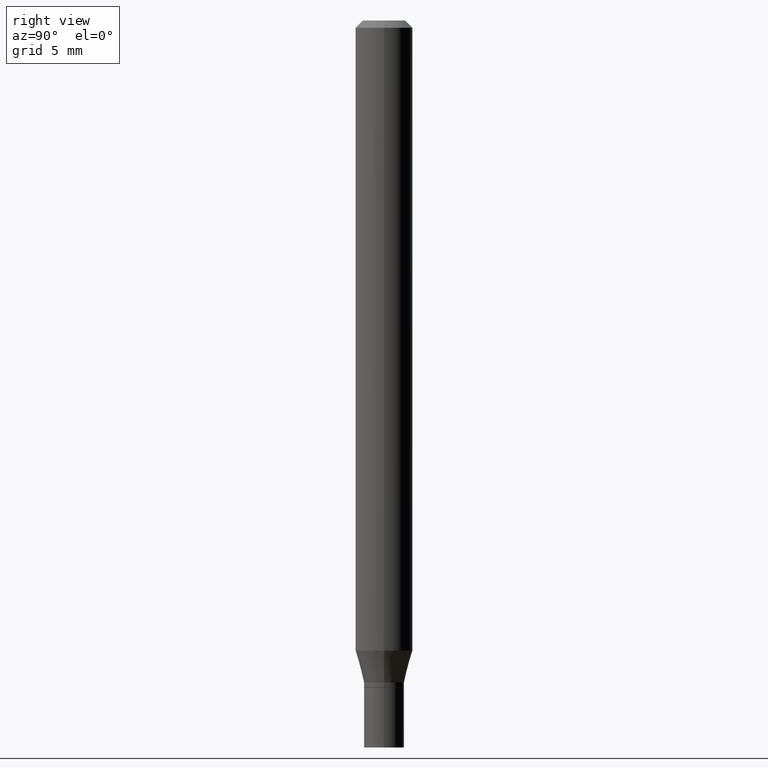
[diagram: clean part render]
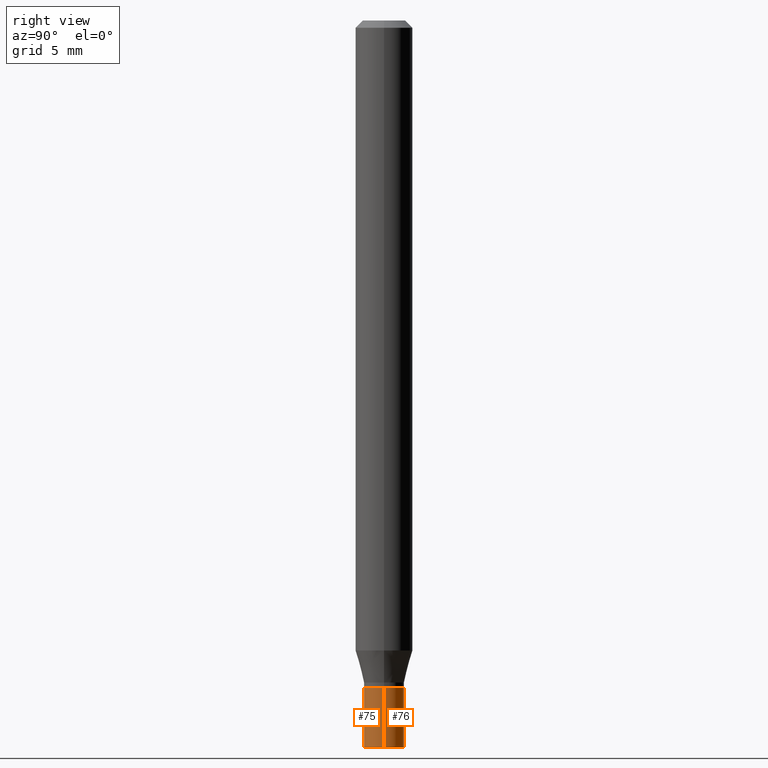
[diagram: same view with one multi-face feature highlighted, each face labeled with its STEP entity id]
A machine part, right view. The highlighted faces form ONE feature: a constant-radius fillet chain: 2 tangent blend faces with common blend radius 1.0503 mm. The faces share edges in the B-rep.
Their STEP definitions:
[1] entity #76 (Cylinder):
#10 = DIRECTION ( 'NONE',  ( -2.445468806185136597E-29, 3.491481338843145583E-15, 1.000000000000000000 ) ) ;
#24 = EDGE_CURVE ( 'NONE', #250, #203, #225, .T. ) ;
#42 = CARTESIAN_POINT ( 'NONE',  ( 3.364720530430130200E-29, -4.803929174114285214E-15, -1.375900000000000123 ) ) ;
#76 = ADVANCED_FACE ( 'NONE', ( #178 ), #435, .T. ) ;
#88 = CARTESIAN_POINT ( 'NONE',  ( -0.04134999999999999787, -4.726766169952701467E-15, -1.375900000000000123 ) ) ;
#91 = DIRECTION ( 'NONE',  ( -2.445468806185136597E-29, 3.491481338843145583E-15, 1.000000000000000000 ) ) ;
#102 = EDGE_LOOP ( 'NONE', ( #256, #272, #177, #450 ) ) ;
#120 = CARTESIAN_POINT ( 'NONE',  ( 0.04134999999999999787, -2.887455067223271427E-16, 2.016299096791619635E-30 ) ) ;
#123 = CARTESIAN_POINT ( 'NONE',  ( 0.04134999999999999787, -5.092674680836612159E-15, -1.375900000000000123 ) ) ;
#134 = CARTESIAN_POINT ( 'NONE',  ( 0.04134999999999999787, -5.525967514987045911E-15, -1.500000000000000222 ) ) ;
#140 = VECTOR ( 'NONE', #386, 39.37007874015748143 ) ;
#151 = CIRCLE ( 'NONE', #455, 0.04134999999999999787 ) ;
#153 = DIRECTION ( 'NONE',  ( -2.445468806185136877E-29, 3.491481338843145188E-15, 1.000000000000000000 ) ) ;
#166 = CARTESIAN_POINT ( 'NONE',  ( -0.04134999999999999787, 2.938094212368014117E-16, -2.033979659820403452E-30 ) ) ;
#177 = ORIENTED_EDGE ( 'NONE', *, *, #24, .F. ) ;
#178 = FACE_OUTER_BOUND ( 'NONE', #102, .T. ) ;
#187 = DIRECTION ( 'NONE',  ( 1.000000000000000000, -6.982962677686273021E-15, 0.000000000000000000 ) ) ;
#203 = VERTEX_POINT ( 'NONE', #88 ) ;
#204 = CARTESIAN_POINT ( 'NONE',  ( 3.668203209277704895E-29, -5.237222008264718177E-15, -1.500000000000000222 ) ) ;
#210 = CARTESIAN_POINT ( 'NONE',  ( -0.04134999999999999787, -4.726766169952701467E-15, -1.500000000000000222 ) ) ;
#225 = CIRCLE ( 'NONE', #402, 0.04134999999999999787 ) ;
#230 = DIRECTION ( 'NONE',  ( 1.000000000000000000, -6.982962677686267499E-15, 4.876176775795936353E-29 ) ) ;
#233 = LINE ( 'NONE', #120, #304 ) ;
#250 = VERTEX_POINT ( 'NONE', #123 ) ;
#256 = ORIENTED_EDGE ( 'NONE', *, *, #323, .T. ) ;
#262 = AXIS2_PLACEMENT_3D ( 'NONE', #445, #332, #230 ) ;
#270 = EDGE_CURVE ( 'NONE', #389, #250, #233, .T. ) ;
#272 = ORIENTED_EDGE ( 'NONE', *, *, #387, .T. ) ;
#304 = VECTOR ( 'NONE', #153, 39.37007874015748143 ) ;
#323 = EDGE_CURVE ( 'NONE', #389, #349, #151, .T. ) ;
#332 = DIRECTION ( 'NONE',  ( -2.445468806185136597E-29, 3.491481338843145583E-15, 1.000000000000000000 ) ) ;
#346 = DIRECTION ( 'NONE',  ( 1.000000000000000000, -6.982962677686273021E-15, 0.000000000000000000 ) ) ;
#349 = VERTEX_POINT ( 'NONE', #210 ) ;
#386 = DIRECTION ( 'NONE',  ( -2.445468806185136877E-29, 3.491481338843145188E-15, 1.000000000000000000 ) ) ;
#387 = EDGE_CURVE ( 'NONE', #349, #203, #463, .T. ) ;
#389 = VERTEX_POINT ( 'NONE', #134 ) ;
#402 = AXIS2_PLACEMENT_3D ( 'NONE', #42, #10, #187 ) ;
#435 = CYLINDRICAL_SURFACE ( 'NONE', #262, 0.04134999999999999787 ) ;
#445 = CARTESIAN_POINT ( 'NONE',  ( 0.000000000000000000, 0.000000000000000000, 0.000000000000000000 ) ) ;
#450 = ORIENTED_EDGE ( 'NONE', *, *, #270, .F. ) ;
#455 = AXIS2_PLACEMENT_3D ( 'NONE', #204, #91, #346 ) ;
#463 = LINE ( 'NONE', #166, #140 ) ;
[2] entity #75 (Cylinder):
#47 = CARTESIAN_POINT ( 'NONE',  ( 0.000000000000000000, 0.000000000000000000, 0.000000000000000000 ) ) ;
#75 = ADVANCED_FACE ( 'NONE', ( #113 ), #185, .T. ) ;
#88 = CARTESIAN_POINT ( 'NONE',  ( -0.04134999999999999787, -4.726766169952701467E-15, -1.375900000000000123 ) ) ;
#112 = DIRECTION ( 'NONE',  ( 1.000000000000000000, -6.982962677686267499E-15, 4.876176775795936353E-29 ) ) ;
#113 = FACE_OUTER_BOUND ( 'NONE', #137, .T. ) ;
#120 = CARTESIAN_POINT ( 'NONE',  ( 0.04134999999999999787, -2.887455067223271427E-16, 2.016299096791619635E-30 ) ) ;
#123 = CARTESIAN_POINT ( 'NONE',  ( 0.04134999999999999787, -5.092674680836612159E-15, -1.375900000000000123 ) ) ;
#134 = CARTESIAN_POINT ( 'NONE',  ( 0.04134999999999999787, -5.525967514987045911E-15, -1.500000000000000222 ) ) ;
#137 = EDGE_LOOP ( 'NONE', ( #252, #345, #385, #303 ) ) ;
#139 = EDGE_CURVE ( 'NONE', #349, #389, #357, .T. ) ;
#140 = VECTOR ( 'NONE', #386, 39.37007874015748143 ) ;
#145 = CARTESIAN_POINT ( 'NONE',  ( 3.668203209277704895E-29, -5.237222008264718177E-15, -1.500000000000000222 ) ) ;
#153 = DIRECTION ( 'NONE',  ( -2.445468806185136877E-29, 3.491481338843145188E-15, 1.000000000000000000 ) ) ;
#166 = CARTESIAN_POINT ( 'NONE',  ( -0.04134999999999999787, 2.938094212368014117E-16, -2.033979659820403452E-30 ) ) ;
#175 = AXIS2_PLACEMENT_3D ( 'NONE', #47, #224, #112 ) ;
#185 = CYLINDRICAL_SURFACE ( 'NONE', #175, 0.04134999999999999787 ) ;
#203 = VERTEX_POINT ( 'NONE', #88 ) ;
#210 = CARTESIAN_POINT ( 'NONE',  ( -0.04134999999999999787, -4.726766169952701467E-15, -1.500000000000000222 ) ) ;
#224 = DIRECTION ( 'NONE',  ( -2.445468806185136597E-29, 3.491481338843145583E-15, 1.000000000000000000 ) ) ;
#233 = LINE ( 'NONE', #120, #304 ) ;
#250 = VERTEX_POINT ( 'NONE', #123 ) ;
#252 = ORIENTED_EDGE ( 'NONE', *, *, #387, .F. ) ;
#270 = EDGE_CURVE ( 'NONE', #389, #250, #233, .T. ) ;
#281 = DIRECTION ( 'NONE',  ( -2.445468806185136597E-29, 3.491481338843145583E-15, 1.000000000000000000 ) ) ;
#297 = DIRECTION ( 'NONE',  ( -2.445468806185136597E-29, 3.491481338843145583E-15, 1.000000000000000000 ) ) ;
#303 = ORIENTED_EDGE ( 'NONE', *, *, #341, .F. ) ;
#304 = VECTOR ( 'NONE', #153, 39.37007874015748143 ) ;
#335 = DIRECTION ( 'NONE',  ( 1.000000000000000000, -6.982962677686273021E-15, 0.000000000000000000 ) ) ;
#341 = EDGE_CURVE ( 'NONE', #203, #250, #434, .T. ) ;
#345 = ORIENTED_EDGE ( 'NONE', *, *, #139, .T. ) ;
#348 = AXIS2_PLACEMENT_3D ( 'NONE', #458, #281, #421 ) ;
#349 = VERTEX_POINT ( 'NONE', #210 ) ;
#357 = CIRCLE ( 'NONE', #417, 0.04134999999999999787 ) ;
#385 = ORIENTED_EDGE ( 'NONE', *, *, #270, .T. ) ;
#386 = DIRECTION ( 'NONE',  ( -2.445468806185136877E-29, 3.491481338843145188E-15, 1.000000000000000000 ) ) ;
#387 = EDGE_CURVE ( 'NONE', #349, #203, #463, .T. ) ;
#389 = VERTEX_POINT ( 'NONE', #134 ) ;
#417 = AXIS2_PLACEMENT_3D ( 'NONE', #145, #297, #335 ) ;
#421 = DIRECTION ( 'NONE',  ( 1.000000000000000000, -6.982962677686273021E-15, 0.000000000000000000 ) ) ;
#434 = CIRCLE ( 'NONE', #348, 0.04134999999999999787 ) ;
#458 = CARTESIAN_POINT ( 'NONE',  ( 3.364720530430130200E-29, -4.803929174114285214E-15, -1.375900000000000123 ) ) ;
#463 = LINE ( 'NONE', #166, #140 ) ;